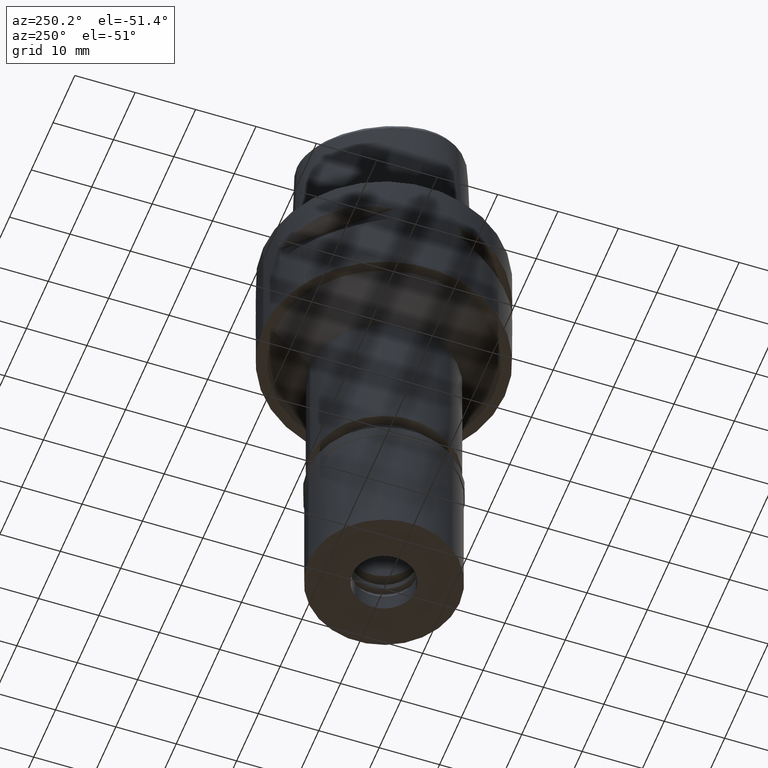
[diagram: clean part render]
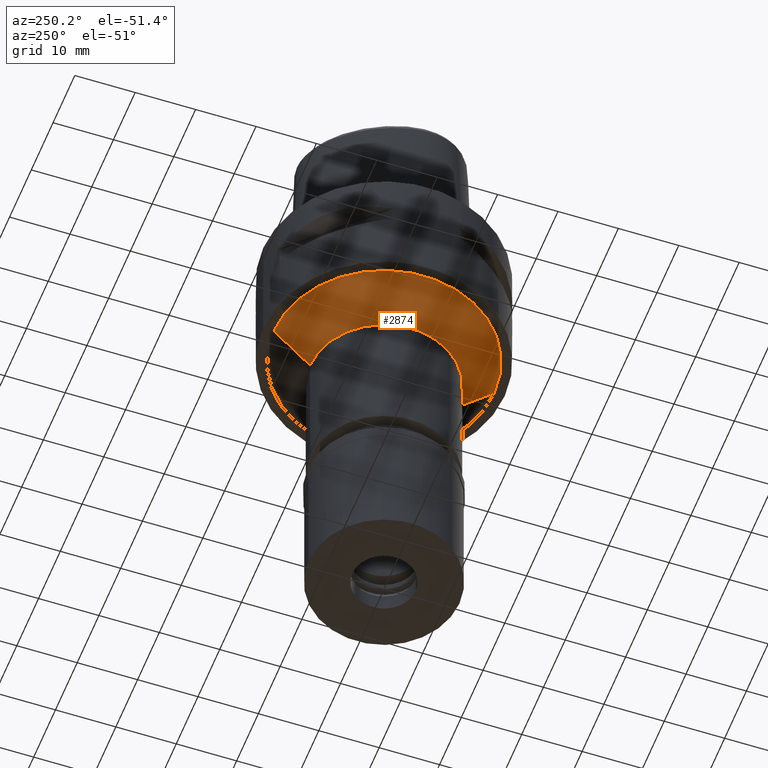
[diagram: same view with one face highlighted and labeled with its STEP entity id]
A machine part, auxiliary view. The second image highlights one B-rep face of the part: STEP entity #2874.
In plain terms, the highlighted conical surface has half-angle 45 deg.
Its self-contained STEP definition (entity closure, byte-faithful):
#58 = ORIENTED_EDGE ( 'NONE', *, *, #4282, .T. ) ;
#76 = ORIENTED_EDGE ( 'NONE', *, *, #1624, .F. ) ;
#88 = CARTESIAN_POINT ( 'NONE',  ( 0.0000000000000000000, 12.25000000000000000, -26.00000000000000000 ) ) ;
#139 = CONICAL_SURFACE ( 'NONE', #4512, 15.25000000000000000, 0.7853981633972997312 ) ;
#440 = ORIENTED_EDGE ( 'NONE', *, *, #624, .T. ) ;
#531 = CARTESIAN_POINT ( 'NONE',  ( 0.0000000000000000000, 0.0000000000000000000, -23.00000000000000000 ) ) ;
#624 = EDGE_CURVE ( 'NONE', #2893, #4277, #4002, .T. ) ;
#777 = AXIS2_PLACEMENT_3D ( 'NONE', #1607, #3754, #4530 ) ;
#797 = CARTESIAN_POINT ( 'NONE',  ( 0.0000000000000000000, 18.25000000000000000, -20.00000000000000000 ) ) ;
#819 = LINE ( 'NONE', #797, #2425 ) ;
#1502 = VERTEX_POINT ( 'NONE', #3495 ) ;
#1583 = VECTOR ( 'NONE', #2422, 1000.000000000000114 ) ;
#1607 = CARTESIAN_POINT ( 'NONE',  ( 0.0000000000000000000, 0.0000000000000000000, -20.00000000000000000 ) ) ;
#1624 = EDGE_CURVE ( 'NONE', #2893, #1502, #3865, .T. ) ;
#1853 = DIRECTION ( 'NONE',  ( 0.0000000000000000000, 0.0000000000000000000, -1.000000000000000000 ) ) ;
#1872 = DIRECTION ( 'NONE',  ( 0.0000000000000000000, -0.7071067811865474617, -0.7071067811865474617 ) ) ;
#1941 = EDGE_CURVE ( 'NONE', #1502, #4343, #2042, .T. ) ;
#2042 = CIRCLE ( 'NONE', #4732, 12.25000000000000000 ) ;
#2115 = FACE_OUTER_BOUND ( 'NONE', #2439, .T. ) ;
#2422 = DIRECTION ( 'NONE',  ( 0.0000000000000000000, 0.7071067811865474617, -0.7071067811865474617 ) ) ;
#2425 = VECTOR ( 'NONE', #1872, 1000.000000000000114 ) ;
#2439 = EDGE_LOOP ( 'NONE', ( #3859, #76, #440, #58 ) ) ;
#2472 = CARTESIAN_POINT ( 'NONE',  ( 0.0000000000000000000, -18.25000000000000000, -20.00000000000000000 ) ) ;
#2608 = CARTESIAN_POINT ( 'NONE',  ( 0.0000000000000000000, 18.25000000000000000, -20.00000000000000000 ) ) ;
#2857 = DIRECTION ( 'NONE',  ( 0.0000000000000000000, -1.000000000000000000, 0.0000000000000000000 ) ) ;
#2874 = ADVANCED_FACE ( 'NONE', ( #2115 ), #139, .T. ) ;
#2893 = VERTEX_POINT ( 'NONE', #2472 ) ;
#3495 = CARTESIAN_POINT ( 'NONE',  ( 0.0000000000000000000, -12.25000000000000000, -26.00000000000000000 ) ) ;
#3587 = CARTESIAN_POINT ( 'NONE',  ( 0.0000000000000000000, 0.0000000000000000000, -26.00000000000000000 ) ) ;
#3754 = DIRECTION ( 'NONE',  ( 0.0000000000000000000, 0.0000000000000000000, -1.000000000000000000 ) ) ;
#3859 = ORIENTED_EDGE ( 'NONE', *, *, #1941, .F. ) ;
#3865 = LINE ( 'NONE', #4276, #1583 ) ;
#3941 = DIRECTION ( 'NONE',  ( 0.0000000000000000000, 1.000000000000000000, 0.0000000000000000000 ) ) ;
#4002 = CIRCLE ( 'NONE', #777, 18.25000000000000000 ) ;
#4276 = CARTESIAN_POINT ( 'NONE',  ( 0.0000000000000000000, -18.25000000000000000, -20.00000000000000000 ) ) ;
#4277 = VERTEX_POINT ( 'NONE', #2608 ) ;
#4282 = EDGE_CURVE ( 'NONE', #4277, #4343, #819, .T. ) ;
#4301 = DIRECTION ( 'NONE',  ( 0.0000000000000000000, 0.0000000000000000000, 1.000000000000000000 ) ) ;
#4343 = VERTEX_POINT ( 'NONE', #88 ) ;
#4512 = AXIS2_PLACEMENT_3D ( 'NONE', #531, #4301, #3941 ) ;
#4530 = DIRECTION ( 'NONE',  ( 0.0000000000000000000, -1.000000000000000000, 0.0000000000000000000 ) ) ;
#4732 = AXIS2_PLACEMENT_3D ( 'NONE', #3587, #1853, #2857 ) ;